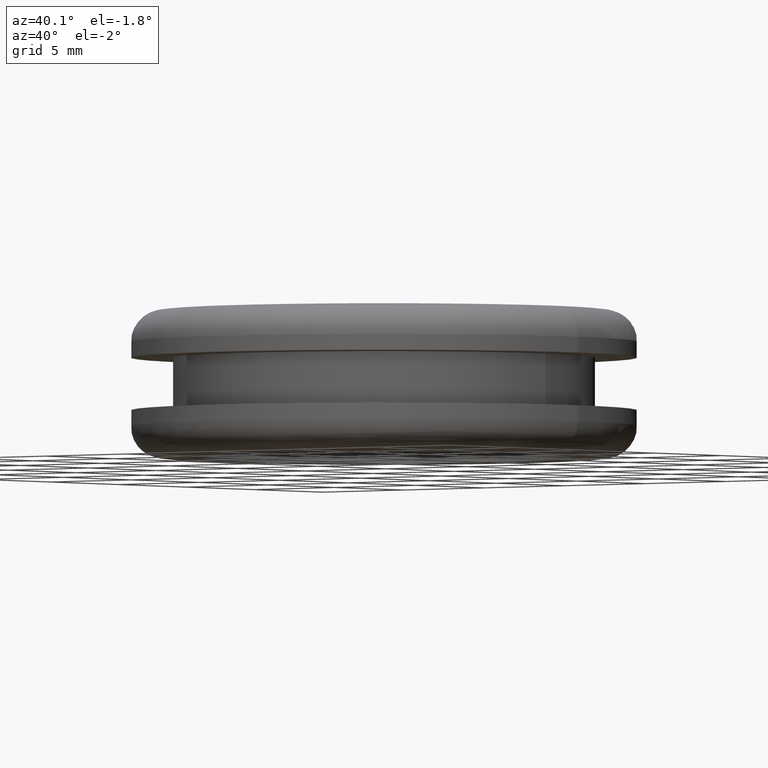
[diagram: clean part render]
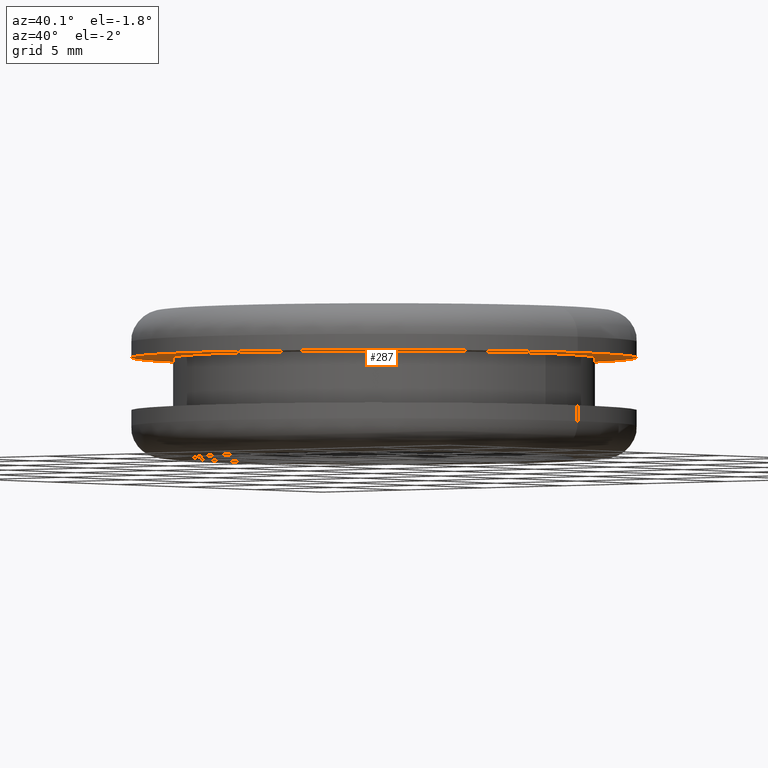
[diagram: same view with one face highlighted and labeled with its STEP entity id]
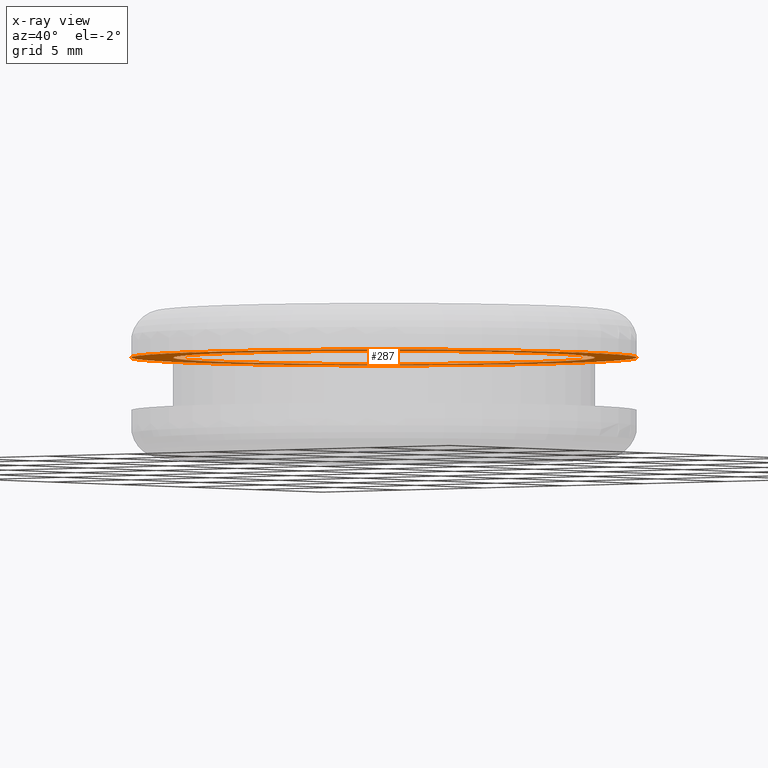
[diagram: x-ray of the same camera — body ghosted, the highlighted face saturated]
A machine part, auxiliary view. The second image highlights one B-rep face of the part: STEP entity #287.
The next image is the same camera in x-ray: the body ghosted, the highlighted face saturated — about 37% of this face is hidden behind the body in this view.
In plain terms, the highlighted planar face has unit normal (0, 0, 1).
Its self-contained STEP definition (entity closure, byte-faithful):
#19 = PLANE ( 'NONE',  #38 ) ;
#25 = CIRCLE ( 'NONE', #333, 12.00000000000990500 ) ;
#38 = AXIS2_PLACEMENT_3D ( 'NONE', #458, #427, #181 ) ;
#40 = CARTESIAN_POINT ( 'NONE',  ( 94.89682171775730500, 0.0000000000000000000, 146.6094493936956000 ) ) ;
#53 = VERTEX_POINT ( 'NONE', #40 ) ;
#59 = VERTEX_POINT ( 'NONE', #306 ) ;
#68 = DIRECTION ( 'NONE',  ( 0.0000000000000000000, 0.0000000000000000000, -1.000000000000000000 ) ) ;
#77 = DIRECTION ( 'NONE',  ( 0.0000000000000000000, 0.0000000000000000000, -1.000000000000000000 ) ) ;
#81 = DIRECTION ( 'NONE',  ( -1.000000000000000000, 0.0000000000000000000, 0.0000000000000000000 ) ) ;
#86 = VERTEX_POINT ( 'NONE', #259 ) ;
#103 = CARTESIAN_POINT ( 'NONE',  ( 104.8968217177672100, 0.0000000000000000000, 146.6094493936956000 ) ) ;
#108 = CARTESIAN_POINT ( 'NONE',  ( 104.8968217177672100, 0.0000000000000000000, 146.6094493936956000 ) ) ;
#116 = AXIS2_PLACEMENT_3D ( 'NONE', #447, #176, #412 ) ;
#136 = CIRCLE ( 'NONE', #421, 10.00000000000990300 ) ;
#140 = ORIENTED_EDGE ( 'NONE', *, *, #468, .T. ) ;
#150 = EDGE_LOOP ( 'NONE', ( #140, #316 ) ) ;
#175 = DIRECTION ( 'NONE',  ( 0.0000000000000000000, 0.0000000000000000000, -1.000000000000000000 ) ) ;
#176 = DIRECTION ( 'NONE',  ( 0.0000000000000000000, 0.0000000000000000000, -1.000000000000000000 ) ) ;
#181 = DIRECTION ( 'NONE',  ( 1.000000000000000000, 0.0000000000000000000, 0.0000000000000000000 ) ) ;
#183 = DIRECTION ( 'NONE',  ( -1.000000000000000000, 0.0000000000000000000, 0.0000000000000000000 ) ) ;
#191 = FACE_BOUND ( 'NONE', #376, .T. ) ;
#194 = EDGE_CURVE ( 'NONE', #261, #53, #136, .T. ) ;
#200 = FACE_OUTER_BOUND ( 'NONE', #150, .T. ) ;
#202 = AXIS2_PLACEMENT_3D ( 'NONE', #108, #77, #327 ) ;
#259 = CARTESIAN_POINT ( 'NONE',  ( 92.89682171775730500, 0.0000000000000000000, 146.6094493936956000 ) ) ;
#261 = VERTEX_POINT ( 'NONE', #374 ) ;
#269 = CIRCLE ( 'NONE', #202, 10.00000000000990300 ) ;
#287 = ADVANCED_FACE ( 'NONE', ( #191, #200 ), #19, .F. ) ;
#306 = CARTESIAN_POINT ( 'NONE',  ( 116.8968217177771200, 1.469576158978035600E-015, 146.6094493936956000 ) ) ;
#316 = ORIENTED_EDGE ( 'NONE', *, *, #337, .T. ) ;
#327 = DIRECTION ( 'NONE',  ( -1.000000000000000000, 0.0000000000000000000, 0.0000000000000000000 ) ) ;
#333 = AXIS2_PLACEMENT_3D ( 'NONE', #103, #68, #81 ) ;
#337 = EDGE_CURVE ( 'NONE', #59, #86, #466, .T. ) ;
#355 = ORIENTED_EDGE ( 'NONE', *, *, #381, .F. ) ;
#374 = CARTESIAN_POINT ( 'NONE',  ( 114.8968217177771200, 1.224646799148565100E-015, 146.6094493936956000 ) ) ;
#376 = EDGE_LOOP ( 'NONE', ( #355, #467 ) ) ;
#381 = EDGE_CURVE ( 'NONE', #53, #261, #269, .T. ) ;
#412 = DIRECTION ( 'NONE',  ( -1.000000000000000000, 0.0000000000000000000, 0.0000000000000000000 ) ) ;
#421 = AXIS2_PLACEMENT_3D ( 'NONE', #446, #175, #183 ) ;
#427 = DIRECTION ( 'NONE',  ( 0.0000000000000000000, 0.0000000000000000000, 1.000000000000000000 ) ) ;
#446 = CARTESIAN_POINT ( 'NONE',  ( 104.8968217177672100, 0.0000000000000000000, 146.6094493936956000 ) ) ;
#447 = CARTESIAN_POINT ( 'NONE',  ( 104.8968217177672100, 0.0000000000000000000, 146.6094493936956000 ) ) ;
#458 = CARTESIAN_POINT ( 'NONE',  ( 116.8968217177772000, 0.0000000000000000000, 146.6094493936956000 ) ) ;
#466 = CIRCLE ( 'NONE', #116, 12.00000000000990500 ) ;
#467 = ORIENTED_EDGE ( 'NONE', *, *, #194, .F. ) ;
#468 = EDGE_CURVE ( 'NONE', #86, #59, #25, .T. ) ;